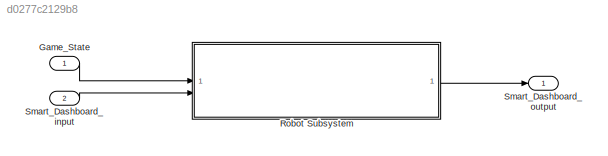
MODEL slx_d0277c2129b8
KIND model
CONFIG AbsTol = auto
CONFIG EnableMultiTasking = off
CONFIG FixedStep = t_sample
CONFIG MaxStep = auto
CONFIG MinStep = auto
CONFIG RelTol = 1e-3
CONFIG SampleTimeConstraint = Unconstrained
CONFIG SolverName = FixedStepDiscrete
CONFIG StartTime = 0.0
CONFIG StopTime = inf
BLOCK [Inport] Game_State
BLOCK [SubSystem] Robot Subsystem
  ReferencedSubsystem = Robot_sub
BLOCK [Inport] Smart_Dashboard_input
  Port = 2
BLOCK [Outport] Smart_Dashboard_output
LINE Game_State:1 -> Robot Subsystem:1
LINE Robot Subsystem:1 -> Smart_Dashboard_output:1
LINE Smart_Dashboard_input:1 -> Robot Subsystem:2
